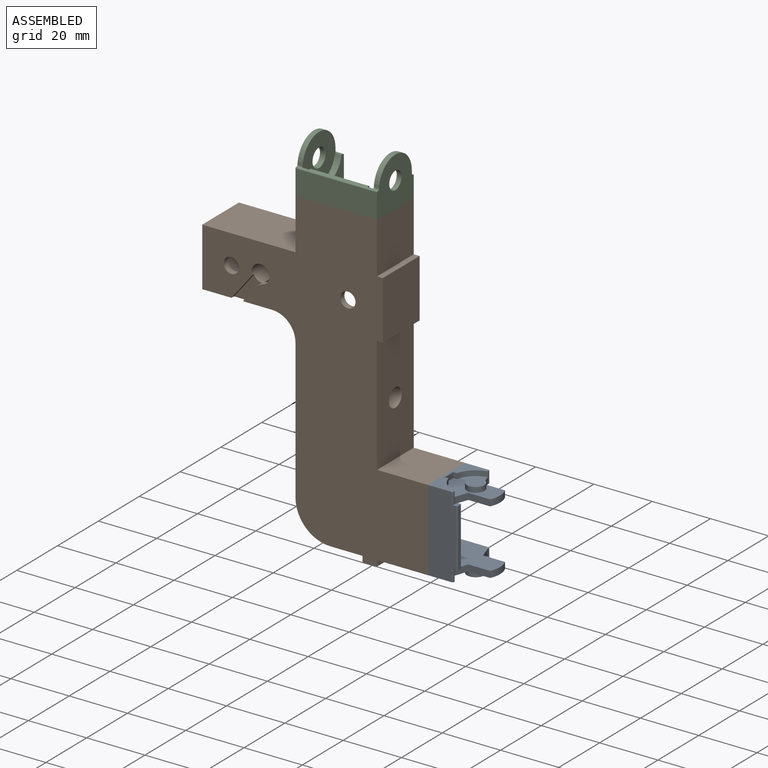
[diagram: assembled view]
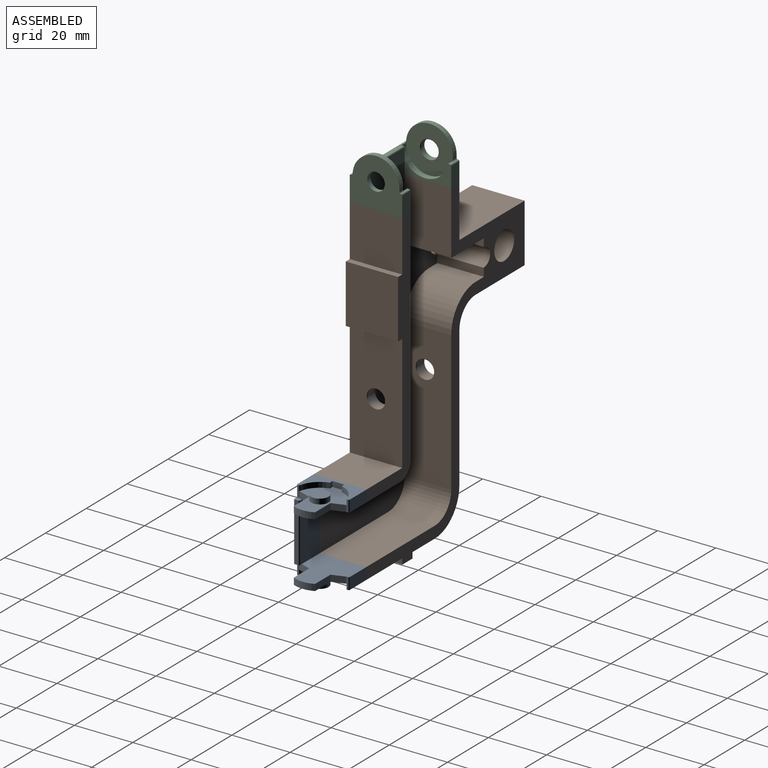
[diagram: assembled view, second angle]
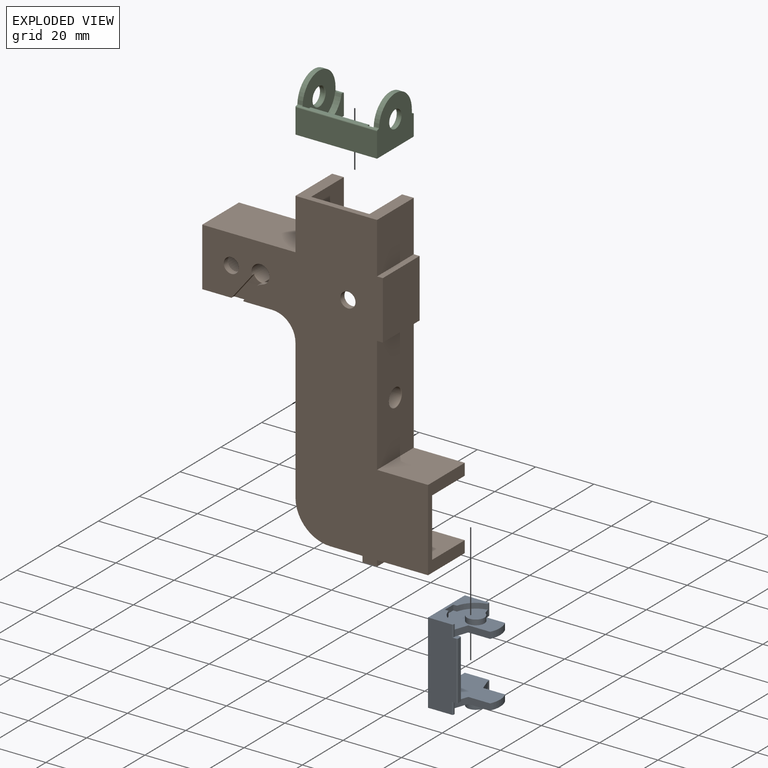
[diagram: exploded view]
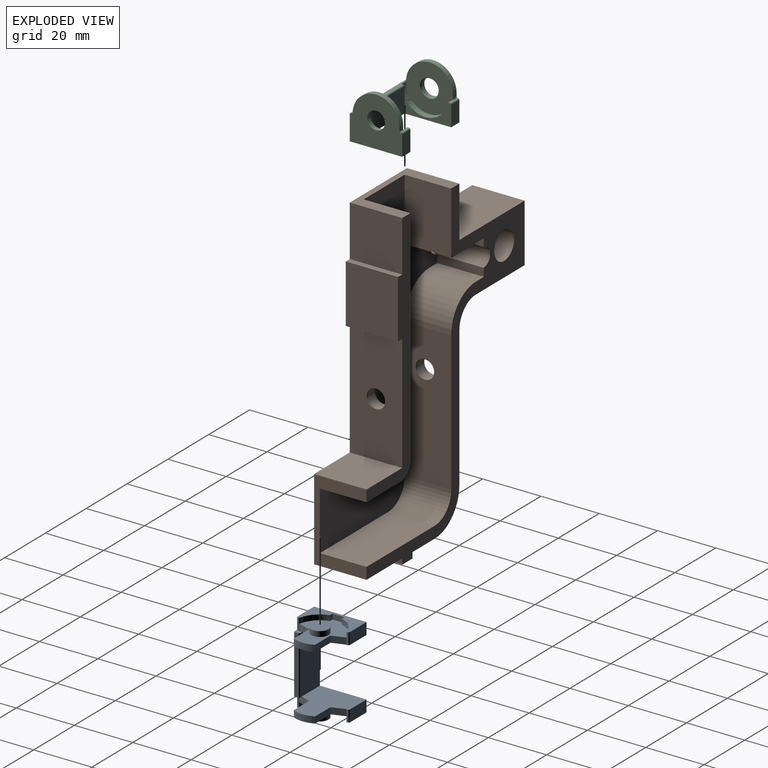
[diagram: exploded view, second angle]
ASSEMBLY  parts=3 mates=6
PART A: 58 faces, bbox 18.4x18x28 mm
  f0: plane 18.4x16mm, normal (0,0,1), area 213mm2, adj f4,f9,f10,f11,f12,f13,f14,f15
  f1: plane 18x8.55mm, normal (0,0,-1), area 69.3mm2, adj f5,f6,f7,f9,f10,f11,f19,f20
  f2: plane 18x8.55mm, normal (0,0,1), area 69.3mm2, adj f5,f25,f26,f27,f28,f30,f31,f32
  f3: plane 18.4x16mm, normal (0,0,-1), area 213mm2, adj f4,f35,f36,f37,f44,f45,f47,f48
  f4: plane 20x9.65mm, normal (0,1,0), area 193mm2, adj f0,f3,f38,f39,f42,f57
  f5: plane 28x9.65mm, normal (0,-1,0), area 258.2mm2, adj f1,f2,f25,f38,f41,f42,f43,f57
  f6: cylinder r=0.4mm len=1.8mm, axis (0,0,1), area 1mm2, adj f1,f7,f8,f9
  f7: cylinder r=8.15mm len=6.08mm, axis (0,0,1), area 16mm2, adj f1,f6,f8,f24
  f8: plane 17.5x16.67mm, normal (0,0,-1), area 132.7mm2, adj f6,f7,f9,f12,f13,f14,f15,f16
  f9: plane 4x0.59mm, normal (1,0,0), area 1.9mm2, adj f0,f1,f6,f8,f10,f12
  f10: cylinder r=0.34mm len=4mm, axis (0,0,1), area 2.1mm2, adj f0,f1,f9,f11
  f11: plane 8.21x4mm, normal (0,1,0), area 32.8mm2, adj f0,f1,f10,f57
  f12: cylinder r=0.4mm len=2.2mm, axis (0,0,1), area 0.3mm2, adj f0,f8,f9,f13
  f13: plane 4.29x2.2mm, normal (0.95,0.33,0), area 10mm2, adj f0,f8,f12,f14
  f14: plane 7.51x2.2mm, normal (0,1,0), area 16.5mm2, adj f0,f8,f13,f15
  f15: cylinder r=8.35mm len=7.3mm, axis (0,0,1), area 16.6mm2, adj f0,f8,f14,f16
  f16: plane 7.51x2.2mm, normal (0,-1,0), area 16.5mm2, adj f0,f8,f15,f17
  f17: plane 4.29x2.2mm, normal (0.95,-0.33,0), area 10mm2, adj f0,f8,f16,f18,f42
  f18: cylinder r=0.4mm len=2.2mm, axis (0,0,1), area 0.3mm2, adj f8,f17,f19,f42
  f19: plane 4x0.53mm, normal (1,0,0), area 1.6mm2, adj f1,f8,f18,f20,f42,f43
  f20: cylinder r=0.4mm len=1.8mm, axis (0,0,1), area 1mm2, adj f1,f8,f19,f21
  f21: cylinder r=8.15mm len=6.08mm, axis (0,0,1), area 16mm2, adj f1,f8,f20,f22
  f22: plane 1.8x1.26mm, normal (0,1,0), area 2.3mm2, adj f1,f8,f21,f23
  f23: plane 4.1x1.8mm, normal (1,0,0), area 7.4mm2, adj f1,f8,f22,f24
  f24: plane 1.8x1.26mm, normal (0,-1,0), area 2.3mm2, adj f1,f7,f8,f23
  f25: cylinder r=0.4mm len=4mm, axis (0,0,1), area 2.5mm2, adj f2,f5,f26,f38
  f26: plane 4x0.53mm, normal (1,0,0), area 1.6mm2, adj f2,f25,f27,f29,f38,f46
  f27: cylinder r=0.4mm len=1.8mm, axis (0,0,-1), area 1mm2, adj f2,f26,f28,f29
  f28: cylinder r=8.15mm len=6.08mm, axis (0,0,-1), area 16mm2, adj f2,f27,f29,f30
  f29: plane 17.5x16.67mm, normal (0,0,1), area 132.7mm2, adj f26,f27,f28,f30,f31,f32,f33,f34
  f30: plane 1.8x1.26mm, normal (0,1,0), area 2.3mm2, adj f2,f28,f29,f31
  f31: plane 4.1x1.8mm, normal (1,0,0), area 7.4mm2, adj f2,f29,f30,f32
  f32: plane 1.8x1.26mm, normal (0,-1,0), area 2.3mm2, adj f2,f29,f31,f33
  f33: cylinder r=8.15mm len=6.08mm, axis (0,0,-1), area 16mm2, adj f2,f29,f32,f34
  f34: cylinder r=0.4mm len=1.8mm, axis (0,0,-1), area 1mm2, adj f2,f29,f33,f35
  f35: plane 4x0.59mm, normal (1,0,0), area 1.9mm2, adj f2,f3,f29,f34,f36,f45
  f36: cylinder r=0.4mm len=2.2mm, axis (0,0,1), area 0.3mm2, adj f3,f29,f35,f50
  f37: plane 4.29x2.2mm, normal (0.95,-0.33,0), area 10mm2, adj f3,f29,f38,f46,f47
  f38: plane 2x1.9mm, normal (0,0,1), area 2.8mm2, adj f4,f5,f25,f26,f37,f39,f40,f41
  f39: cylinder r=0.4mm len=20mm, axis (0,0,1), area 12.6mm2, adj f4,f38,f40,f42
  f40: plane 20x1.2mm, normal (1,0,0), area 24mm2, adj f38,f39,f41,f42
  f41: cylinder r=0.4mm len=20mm, axis (0,0,1), area 12.6mm2, adj f5,f38,f40,f42
  f42: plane 2x1.9mm, normal (0,0,-1), area 2.8mm2, adj f4,f5,f17,f18,f19,f39,f40,f41
  f43: cylinder r=0.4mm len=4mm, axis (0,0,1), area 2.5mm2, adj f1,f5,f19,f42
  f44: plane 8.21x4mm, normal (0,1,0), area 32.8mm2, adj f2,f3,f45,f57
  f45: cylinder r=0.34mm len=4mm, axis (0,0,1), area 2.1mm2, adj f2,f3,f35,f44
  f46: cylinder r=0.4mm len=2.2mm, axis (0,0,1), area 0.3mm2, adj f26,f29,f37,f38
  f47: plane 7.51x2.2mm, normal (0,-1,0), area 16.5mm2, adj f3,f29,f37,f48
  f48: cylinder r=8.35mm len=7.3mm, axis (0,0,1), area 16.6mm2, adj f3,f29,f47,f49
  f49: plane 7.51x2.2mm, normal (0,1,0), area 16.5mm2, adj f3,f29,f48,f50
  f50: plane 4.29x2.2mm, normal (0.95,0.33,0), area 10mm2, adj f3,f29,f36,f49
  f51: cylinder r=3mm len=6mm, axis (0,0,-1), area 17mm2, adj f29,f52,f53
  f52: cylinder r=3mm len=6mm, axis (0,0,-1), area 17mm2, adj f29,f51,f53
  f53: plane 6x6mm, normal (0,0,1), area 28.3mm2, adj f51,f52
  f54: cylinder r=3mm len=6mm, axis (0,0,1), area 17mm2, adj f8,f55,f56
  f55: cylinder r=3mm len=6mm, axis (0,0,1), area 17mm2, adj f8,f54,f56
  f56: plane 6x6mm, normal (0,0,-1), area 28.3mm2, adj f54,f55
  f57: plane 28x18mm, normal (-1,0,0), area 184mm2, adj f0,f1,f2,f3,f4,f5,f11,f44
PART B: 65 faces, bbox 107.5x18x77.5 mm
  f0: plane 24x18mm, normal (-1,0,0), area 426.4mm2, adj f4,f15,f19,f37,f50,f53,f54,f55
  f1: cylinder r=3.1mm len=18mm, axis (0,-1,0), area 181mm2, adj f4,f19,f44,f45,f46,f47,f48,f57
  f2: plane 28x18mm, normal (0,0,1), area 184mm2, adj f4,f10,f11,f18,f19,f21,f26,f33
  f3: plane 28x18mm, normal (1,0,0), area 184mm2, adj f4,f5,f17,f18,f19,f21,f31,f32
  f4: plane 107.5x77.5mm, normal (0,-1,0), area 921.9mm2, adj f0,f1,f2,f3,f11,f12,f13,f14
  f5: plane 18x17.5mm, normal (0,0,1), area 315mm2, adj f3,f6,f18,f19
  f6: plane 18x2mm, normal (1,0,0), area 36mm2, adj f5,f7,f18,f19
  f7: plane 20x18mm, normal (0,0,1), area 360mm2, adj f6,f8,f18,f19
  f8: plane 18x2mm, normal (-1,0,0), area 36mm2, adj f7,f9,f18,f19
  f9: plane 40x18mm, normal (0,0,1), area 686.8mm2, adj f8,f10,f18,f19,f62
  f10: plane 18x17.5mm, normal (1,0,0), area 315mm2, adj f2,f9,f18,f19
  f11: plane 18x17.5mm, normal (-1,0,0), area 315mm2, adj f2,f4,f12,f19
  f12: plane 18x2mm, normal (0,0,1), area 36mm2, adj f4,f11,f13,f19
  f13: plane 18x5mm, normal (-1,0,0), area 90mm2, adj f4,f12,f19,f35
  f14: plane 48x18mm, normal (0,0,-1), area 834.8mm2, adj f4,f19,f37,f38,f61
  f15: plane 20x18mm, normal (0,0,-1), area 360mm2, adj f0,f4,f16,f19
  f16: plane 32x18mm, normal (1,0,0), area 576mm2, adj f4,f15,f17,f19
  f17: plane 18x17.5mm, normal (0,0,-1), area 315mm2, adj f3,f4,f16,f19
  f18: plane 81.5x21.5mm, normal (0,-1,0), area 430.6mm2, adj f2,f3,f5,f6,f7,f8,f9,f10
  f19: plane 107.5x77.5mm, normal (0,1,0), area 4014.2mm2, adj f0,f1,f2,f3,f5,f6,f7,f8
  f20: cylinder r=2.6mm len=5.2mm, axis (0,-1,0), area 32.7mm2, adj f19,f21
  f21: plane 101.5x57.5mm, normal (0,-1,0), area 2636.2mm2, adj f2,f3,f20,f25,f26,f27,f28,f29
  f22: cylinder r=2.6mm len=5.2mm, axis (0,-1,0), area 32.7mm2, adj f19,f23
  f23: plane 9.75x9.75mm, normal (0,-1,0), area 53.4mm2, adj f22,f24
  f24: cylinder r=4.88mm len=16mm, axis (0,-1,0), area 490.1mm2, adj f4,f23
  f25: plane 16x2.71mm, normal (0,0,1), area 43.3mm2, adj f4,f21,f30,f58,f59
  f26: plane 33.5x16mm, normal (1,0,0), area 536mm2, adj f2,f4,f21,f36
  f27: plane 48x16mm, normal (0,0,1), area 734.8mm2, adj f4,f21,f36,f39,f63
  f28: plane 16x4mm, normal (1,0,0), area 64mm2, adj f4,f21,f29,f39
  f29: plane 16x2.71mm, normal (0,0,1), area 43.3mm2, adj f4,f21,f28,f57,f58
  f30: plane 16x16mm, normal (-1,0,0), area 256mm2, adj f4,f21,f25,f31
  f31: plane 21.5x16mm, normal (0,0,1), area 344mm2, adj f3,f4,f21,f30
  f32: plane 76.5x16mm, normal (0,0,-1), area 1190.8mm2, adj f3,f18,f21,f40,f64
  f33: plane 16.5x16mm, normal (-1,0,0), area 264mm2, adj f2,f18,f21,f40
  f34: plane 18x11mm, normal (-1,0,0), area 198mm2, adj f4,f19,f35,f38
  f35: plane 18x2mm, normal (0,0,-1), area 36mm2, adj f4,f13,f19,f34
  f36: cylinder r=8mm len=16mm, axis (0,1,0), area 201.1mm2, adj f4,f21,f26,f27
  f37: cylinder r=8mm len=18mm, axis (0,1,0), area 226.2mm2, adj f0,f4,f14,f19
  f38: cylinder r=12mm len=18mm, axis (0,1,0), area 339.3mm2, adj f4,f14,f19,f34
  f39: cylinder r=12mm len=16mm, axis (0,1,0), area 301.6mm2, adj f4,f21,f27,f28
  f40: cylinder r=5mm len=16mm, axis (0,-1,0), area 125.7mm2, adj f18,f21,f32,f33
  f41: plane 8.65x6.92mm, normal (-0.62,0,0.78), area 10mm2, adj f19,f45,f50,f51
  f42: plane 4.96x3.97mm, normal (0.62,0,-0.78), area 5.7mm2, adj f19,f44,f52,f53
  f43: plane 9.07x8.24mm, normal (0,1,0), area 24.5mm2, adj f46,f49,f51,f52,f56
  f44: cylinder r=5mm len=2.64mm, axis (0,-1,0), area 2.9mm2, adj f1,f19,f42,f49
  f45: cylinder r=0.2mm len=0.9mm, axis (0,-1,0), area 0.2mm2, adj f1,f19,f41,f48
  f46: torus R=3.3mm, axis (0,1,0), area 0.9mm2, adj f1,f43,f47,f48
  f47: bspline ~1.25x0.4mm, area 0.2mm2, adj f1,f46,f49
  f48: bspline ~0.5x0.48mm, area 0.1mm2, adj f1,f45,f46,f51
  f49: torus R=5.2mm, axis (0,1,0), area 0.8mm2, adj f43,f44,f47,f52
  f50: cylinder r=0.2mm len=0.9mm, axis (0,1,0), area 0.2mm2, adj f0,f19,f41,f54
  f51: cylinder r=0.2mm len=8.78mm, axis (-0.78,0,-0.62), area 3.4mm2, adj f41,f43,f48,f54
  f52: cylinder r=0.2mm len=5.34mm, axis (0.78,0,0.62), area 2mm2, adj f42,f43,f49,f55
  f53: cylinder r=0.2mm len=0.9mm, axis (0,-1,0), area 0.4mm2, adj f0,f19,f42,f55
  f54: bspline ~0.6x0.4mm, area 0.1mm2, adj f0,f50,f51,f56
  f55: bspline ~0.54x0.4mm, area 0.2mm2, adj f0,f52,f53,f56
  f56: cylinder r=0.2mm len=3.33mm, axis (0,0,-1), area 1mm2, adj f0,f43,f54,f55
  f57: cylinder r=0.2mm len=16.2mm, axis (0,-1,0), area 4.9mm2, adj f1,f4,f29,f58
  f58: torus R=3.3mm, axis (0,-1,0), area 3.2mm2, adj f1,f21,f25,f29,f57,f59
  f59: cylinder r=0.2mm len=16.2mm, axis (0,-1,0), area 4.9mm2, adj f1,f4,f25,f58
  f60: cylinder r=3.05mm len=6.1mm, axis (0,0,-1), area 69mm2, adj f62,f64
  f61: cylinder r=3.05mm len=6.1mm, axis (0,0,-1), area 72.8mm2, adj f14,f63
  f62: torus R=3.25mm, axis (0,0,-1), area 6.2mm2, adj f9,f60
  f63: torus R=3.25mm, axis (0,0,1), area 6.2mm2, adj f27,f61
  f64: torus R=3.25mm, axis (0,0,1), area 6.2mm2, adj f32,f60
PART C: 38 faces, bbox 16.9x18x28 mm
  f0: plane 6.95x4mm, normal (0,1,0), area 27.8mm2, adj f1,f3,f5,f6
  f1: plane 18x16.9mm, normal (0,0,-1), area 230.9mm2, adj f0,f3,f4,f6,f7,f9,f10,f11
  f2: plane 6.95x4mm, normal (0,1,0), area 27.8mm2, adj f6,f13,f14,f31
  f3: cylinder r=0.4mm len=4mm, axis (0,0,1), area 2.5mm2, adj f0,f1,f4,f5
  f4: plane 4x0.69mm, normal (-1,0,0), area 1.8mm2, adj f1,f3,f5,f7,f8,f21
  f5: plane 16x7.35mm, normal (0,0,1), area 41.1mm2, adj f0,f3,f4,f6,f15,f21
  f6: plane 28x18mm, normal (1,0,0), area 184mm2, adj f0,f1,f2,f5,f13,f14,f15,f16
  f7: cylinder r=0.4mm len=1.8mm, axis (0,0,1), area 1.1mm2, adj f1,f4,f8,f11
  f8: plane 16.89x16.1mm, normal (0,0,1), area 171mm2, adj f4,f7,f9,f10,f11,f12,f21,f34
  f9: cylinder r=0.4mm len=1.8mm, axis (0,0,1), area 1.1mm2, adj f1,f8,f10,f12
  f10: cylinder r=8.05mm len=16.09mm, axis (0,0,1), area 44.8mm2, adj f1,f8,f9,f11
  f11: plane 1.8x1.1mm, normal (0,1,0), area 2mm2, adj f1,f7,f8,f10
  f12: plane 28x1.2mm, normal (-1,0,0), area 27mm2, adj f1,f8,f9,f13,f17,f18,f19,f20
  f13: plane 18x16.9mm, normal (0,0,1), area 230.9mm2, adj f2,f6,f12,f16,f17,f23,f24,f25
  f14: plane 16x7.35mm, normal (0,0,-1), area 41.1mm2, adj f2,f6,f15,f22,f23,f31
  f15: plane 20x8.45mm, normal (0,1,0), area 169mm2, adj f5,f6,f14,f18,f19,f20
  f16: plane 28x8.45mm, normal (0,-1,0), area 236.6mm2, adj f1,f6,f13,f17
  f17: cylinder r=0.4mm len=28mm, axis (0,0,1), area 17.6mm2, adj f1,f12,f13,f16
  f18: plane 3.98x1.05mm, normal (0,0,1), area 2.8mm2, adj f12,f15,f19,f22
  f19: cylinder r=0.4mm len=20mm, axis (0,0,1), area 12.6mm2, adj f12,f15,f18,f20
  f20: plane 3.98x1.05mm, normal (0,0,-1), area 2.8mm2, adj f12,f15,f19,f21
  f21: cylinder r=8.05mm len=15.96mm, axis (0,0,-1), area 52.3mm2, adj f4,f5,f8,f12,f20
  f22: cylinder r=8.05mm len=15.96mm, axis (0,0,1), area 52.3mm2, adj f12,f14,f18,f23,f28
  f23: plane 4x0.69mm, normal (-1,0,0), area 1.8mm2, adj f13,f14,f22,f24,f28,f31
  f24: cylinder r=0.4mm len=1.8mm, axis (0,0,1), area 1.1mm2, adj f13,f23,f25,f28
  f25: plane 1.8x1.1mm, normal (0,1,0), area 2mm2, adj f13,f24,f26,f28
  f26: cylinder r=8.05mm len=16.09mm, axis (0,0,1), area 44.8mm2, adj f13,f25,f27,f28
  f27: cylinder r=0.4mm len=1.8mm, axis (0,0,1), area 1.1mm2, adj f12,f13,f26,f28
  f28: plane 16.89x16.1mm, normal (0,0,-1), area 171mm2, adj f12,f22,f23,f24,f25,f26,f27,f36
  f29: cylinder r=3.02mm len=6.05mm, axis (0,0,1), area 15.2mm2, adj f13,f30,f36
  f30: cylinder r=3.02mm len=6.05mm, axis (0,0,1), area 15.2mm2, adj f13,f29,f37
  f31: cylinder r=0.4mm len=4mm, axis (0,0,1), area 2.5mm2, adj f2,f13,f14,f23
  f32: cylinder r=3.02mm len=6.05mm, axis (0,0,-1), area 15.2mm2, adj f1,f33,f35
  f33: cylinder r=3.02mm len=6.05mm, axis (0,0,-1), area 15.2mm2, adj f1,f32,f34
  f34: cone r=3.02mm half-angle=45deg, axis (0,0,1), area 2.8mm2, adj f8,f33,f35
  f35: cone r=3.02mm half-angle=45deg, axis (0,0,1), area 2.8mm2, adj f8,f32,f34
  f36: cone r=3.23mm half-angle=45deg, axis (0,0,-1), area 2.8mm2, adj f28,f29,f37
  f37: cone r=3.23mm half-angle=45deg, axis (0,0,-1), area 2.8mm2, adj f28,f30,f36
PLACE A t=(62.11,56.25,-177.63)mm
PLACE B rot(axis=(-0.71,0,-0.71),180deg) t=(22.56,47.25,-113.63)mm
PLACE C rot(axis=(0,1,0),90deg) t=(38.56,56.25,-77.28)mm
MATE planar B.f17 <-> C.f1  axis (-1,0,0) through (24.56,56.25,-94.88)mm
MATE planar B.f10 <-> A.f2  axis (0,0,1) through (61.31,56.25,-163.63)mm
MATE planar B.f2 <-> A.f57  axis (1,0,0) through (70.06,49.25,-187.63)mm
MATE planar B.f3 <-> C.f6  axis (0,0,1) through (38.56,54.51,-86.13)mm
MATE planar B.f21 <-> A.f4  axis (0,1,0) through (40.67,49.25,-141.81)mm
MATE planar C.f15 <-> B.f21  axis (0,1,0) through (38.56,49.25,-81.91)mm
